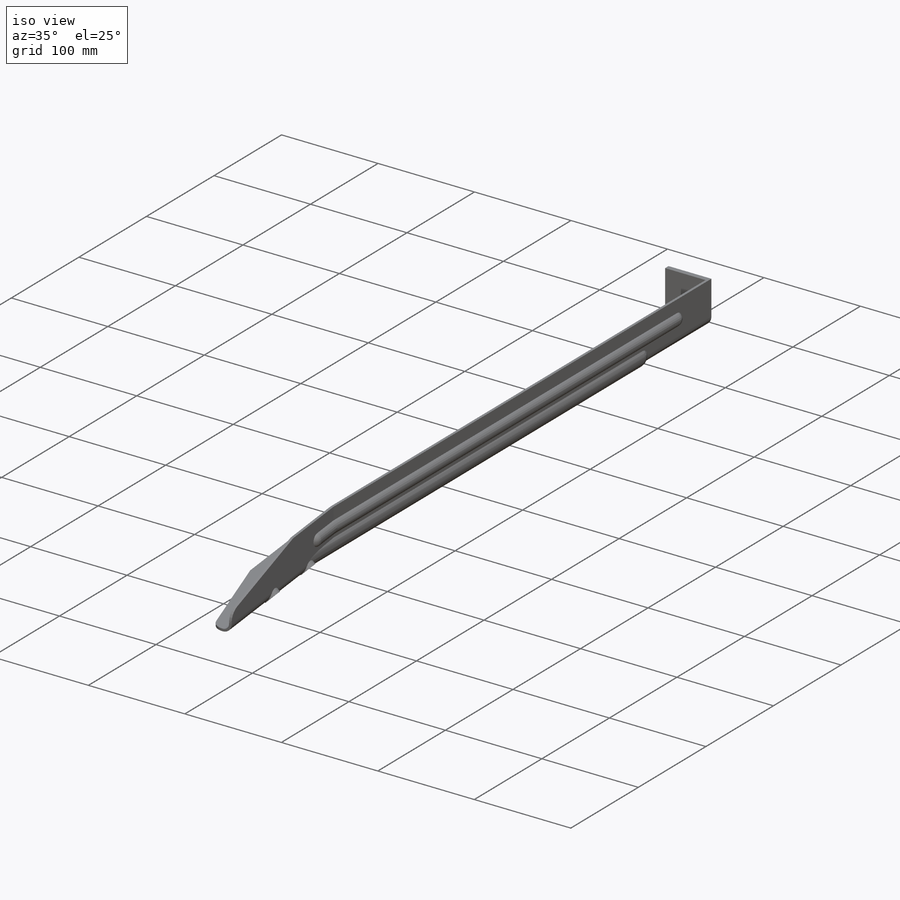
[diagram: iso view]
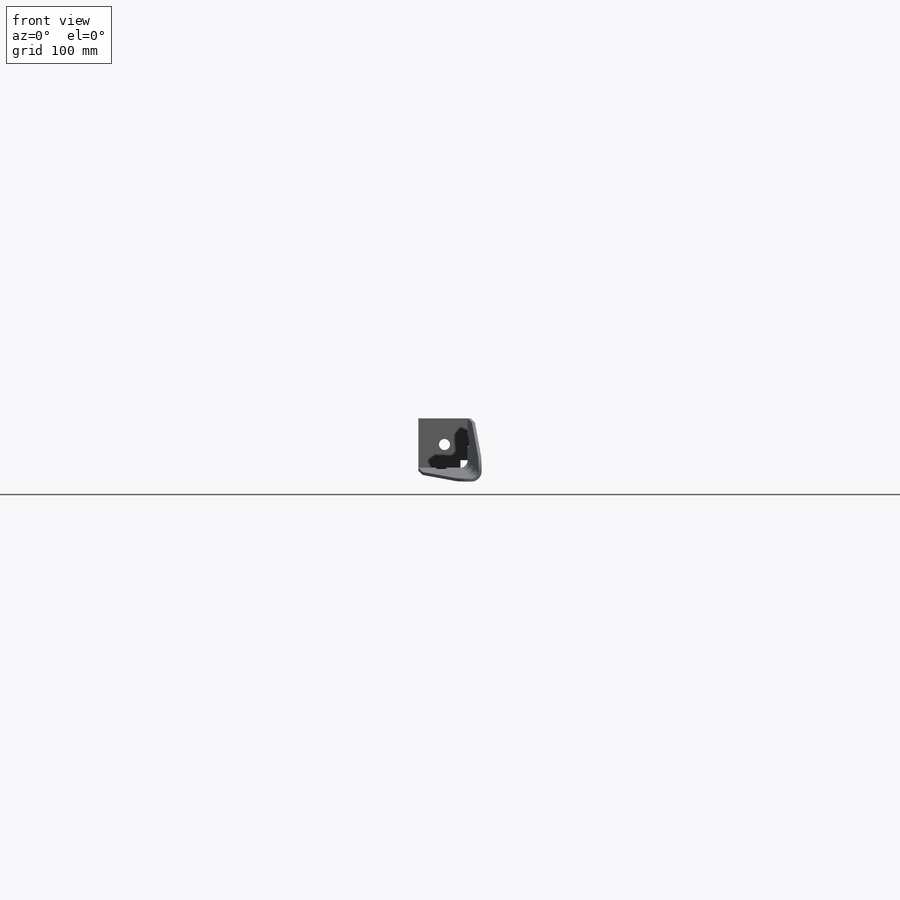
[diagram: front view]
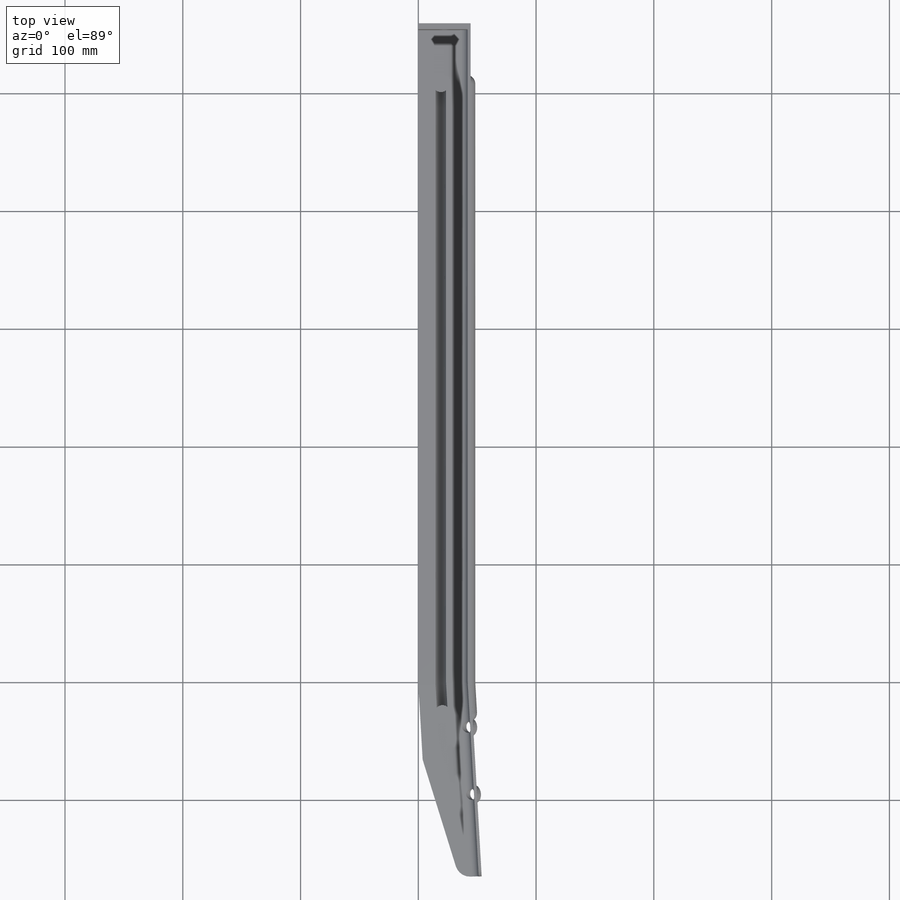
[diagram: top view]
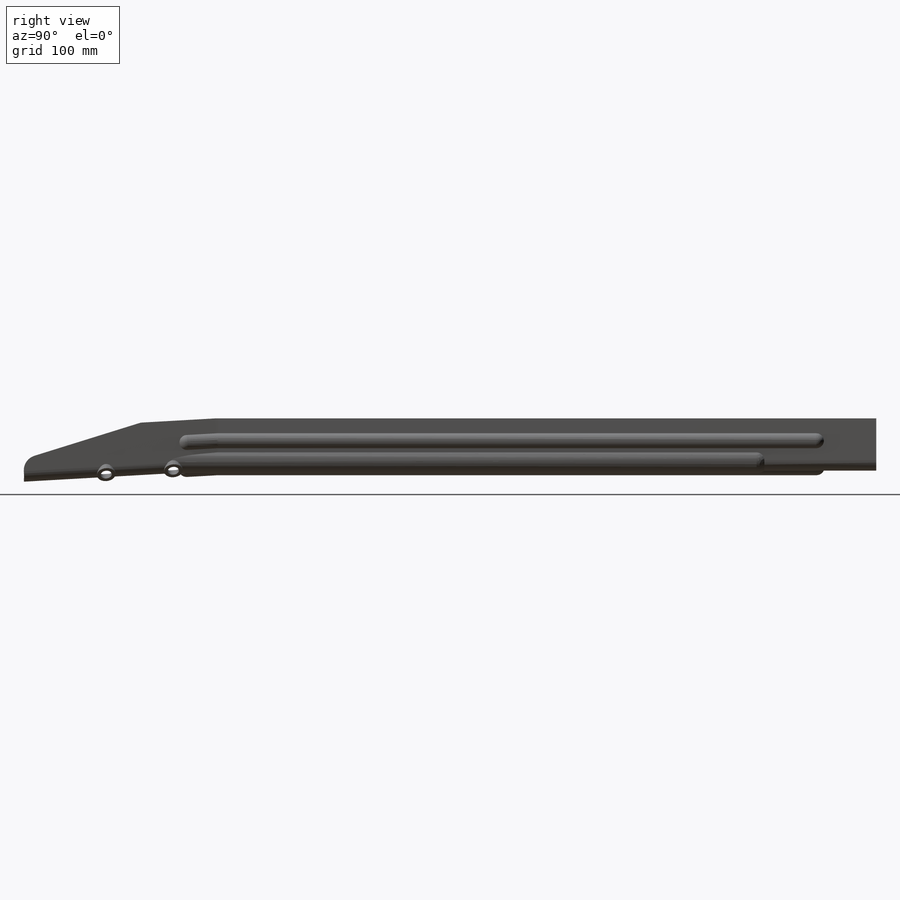
[diagram: right view]
SOLIDWORKS PART (.sldprt)
format: sldprt  version: not decoded by parser v0  size: 1,183,744 bytes
history: native  units: mm
features: sketch x19, extrude x8, revolve x6, cut_extrude x5, material x1, fillet x1 (+15 scaffold rows collapsed)
feature tree (55):
  scaffold x15  (default folders/planes/origin — collapsed)
  material  "Material <not specified>"
  sketch  "Sketch1"
  extrude  "Extrude1"  Depth=457.2mm
  sketch  "Sketch2"  dims[D1=0.635mm]
  revolve  "Revolve4"  Angle=4.59deg
  sketch  "Sketch3"
  extrude  "Extrude2"  Depth=25.4mm
  sketch  "Sketch11"
  extrude  "Extrude6"  Depth=139.7mm
  sketch  "Sketch5"
  extrude  "Extrude4"  Depth=50.8mm
  sketch  "Sketch4"  dims[D1=~10.502244mm]
  extrude  "Extrude3"  Depth=558.8mm
  sketch  "Sketch6"
  revolve  "Revolve6"  Angle=360deg
  sketch  "Sketch7"
  extrude  "Extrude5"  Depth=50.8mm
  sketch  "Sketch8"
  revolve  "Revolve7"  Angle=360deg
  sketch  "Sketch9"
  revolve  "Revolve8"  Angle=360deg
  sketch  "Sketch12"
  revolve  "Revolve9"  Angle=360deg
  sketch  "Sketch13"
  revolve  "Revolve10"  Angle=360deg
  sketch  "Sketch14"  dims[D1=101.6mm]
  cut_extrude  "Cut-Extrude1"  [1 undecoded]
  sketch  "Sketch15"  dims[D1=101.6mm]
  cut_extrude  "Cut-Extrude2"  [1 undecoded]
  fillet  "Fillet1"  Radius=12.7mm
  sketch  "3DSketch1"  dims[c1.D1=~5.743946mm c2.D1=~8.31212mm c3.D1=~7.752633mm c4.D1=~7.746372mm c5.D1=69.85mm c6.D1=57.15mm c7.D1=69.85mm c8.D1=57.15mm]
  extrude  "Extrude7"  Depth=5.08mm
  sketch  "Sketch16"
  cut_extrude  "Cut-Extrude4"  Depth=127mm
  sketch  "Sketch17"
  cut_extrude  "Cut-Extrude5"  Depth=508mm
  sketch  "Sketch18"
  cut_extrude  "Cut-Extrude7"  Depth=736.6mm
  sketch  "Sketch19"  dims[D1=~5.306777mm]
  extrude  "Extrude8"  Depth=5.08mm
decode coverage: 24 of 39 modeling features carry decoded parameters
note: ~ marks probable driven/reference dimensions
note: 2 parameter values undecoded
note: suppression state not decoded; provenance and decode notes live in map.json
